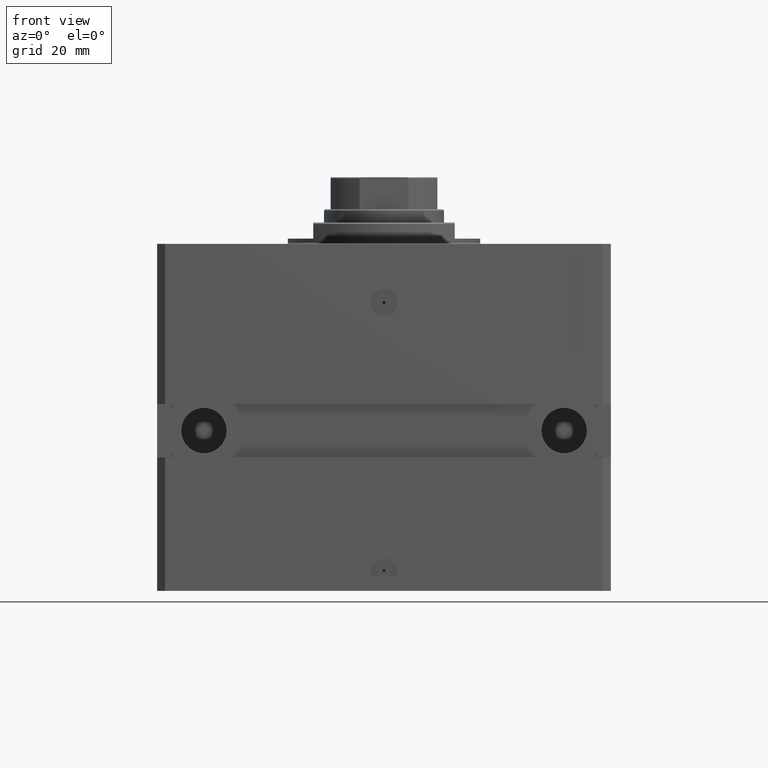
[diagram: clean part render]
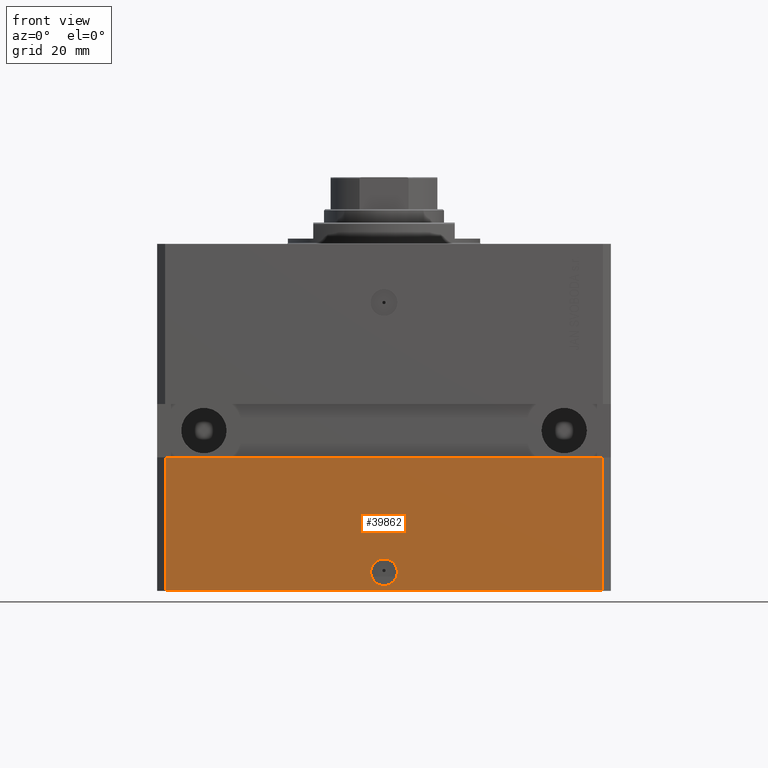
[diagram: same view with one face highlighted and labeled with its STEP entity id]
A machine part, front view. The second image highlights one B-rep face of the part: STEP entity #39862.
In plain terms, the highlighted planar face has unit normal (0, -1, 0).
Its self-contained STEP definition (entity closure, byte-faithful):
#708 = EDGE_LOOP ( 'NONE', ( #21276, #44220, #24317, #45873 ) ) ;
#2965 = LINE ( 'NONE', #18387, #34085 ) ;
#3627 = DIRECTION ( 'NONE',  ( 0.000000000000000000, -0.000000000000000000, -1.000000000000000000 ) ) ;
#4494 = VECTOR ( 'NONE', #31819, 1000.000000000000000 ) ;
#4586 = EDGE_CURVE ( 'NONE', #8943, #26206, #43077, .T. ) ;
#6577 = FACE_OUTER_BOUND ( 'NONE', #708, .T. ) ;
#7064 = PLANE ( 'NONE',  #40439 ) ;
#8041 = LINE ( 'NONE', #22493, #22066 ) ;
#8943 = VERTEX_POINT ( 'NONE', #15189 ) ;
#9366 = CIRCLE ( 'NONE', #39888, 5.000000000000006217 ) ;
#9384 = DIRECTION ( 'NONE',  ( 1.176083712526788232E-16, -1.000000000000000000, 0.000000000000000000 ) ) ;
#10395 = AXIS2_PLACEMENT_3D ( 'NONE', #47113, #9384, #31426 ) ;
#11127 = CARTESIAN_POINT ( 'NONE',  ( -82.00000000000001421, -70.00000000000000000, -130.0000000000000000 ) ) ;
#14367 = CARTESIAN_POINT ( 'NONE',  ( -5.000000000000006217, -70.00000000000000000, -123.0000000000000000 ) ) ;
#15189 = CARTESIAN_POINT ( 'NONE',  ( 82.00000000000001421, -70.00000000000000000, -130.0000000000000000 ) ) ;
#16713 = EDGE_CURVE ( 'NONE', #36197, #24969, #8041, .T. ) ;
#18387 = CARTESIAN_POINT ( 'NONE',  ( -82.00000000000001421, -70.00000000000000000, -130.0000000000000000 ) ) ;
#18988 = CARTESIAN_POINT ( 'NONE',  ( 5.000000000000006217, -70.00000000000000000, -123.0000000000000000 ) ) ;
#19631 = ORIENTED_EDGE ( 'NONE', *, *, #46722, .F. ) ;
#21276 = ORIENTED_EDGE ( 'NONE', *, *, #40746, .F. ) ;
#22066 = VECTOR ( 'NONE', #33756, 1000.000000000000000 ) ;
#22493 = CARTESIAN_POINT ( 'NONE',  ( -82.00000000000001421, -70.00000000000000000, -130.0000000000000000 ) ) ;
#24317 = ORIENTED_EDGE ( 'NONE', *, *, #33570, .T. ) ;
#24659 = CARTESIAN_POINT ( 'NONE',  ( 82.00000000000001421, -69.99999999999998579, -80.00000000000001421 ) ) ;
#24969 = VERTEX_POINT ( 'NONE', #45647 ) ;
#25022 = EDGE_CURVE ( 'NONE', #38874, #32997, #37776, .T. ) ;
#25479 = DIRECTION ( 'NONE',  ( 1.000000000000000000, 0.000000000000000000, 0.000000000000000000 ) ) ;
#26206 = VERTEX_POINT ( 'NONE', #24659 ) ;
#28630 = CARTESIAN_POINT ( 'NONE',  ( -85.00000000000001421, -70.00000000000001421, -80.00000000000001421 ) ) ;
#31426 = DIRECTION ( 'NONE',  ( 1.000000000000000000, 0.000000000000000000, 0.000000000000000000 ) ) ;
#31819 = DIRECTION ( 'NONE',  ( 1.000000000000000000, 1.632680918566406300E-16, 0.000000000000000000 ) ) ;
#32997 = VERTEX_POINT ( 'NONE', #18988 ) ;
#33570 = EDGE_CURVE ( 'NONE', #36197, #8943, #2965, .T. ) ;
#33745 = FACE_BOUND ( 'NONE', #42383, .T. ) ;
#33756 = DIRECTION ( 'NONE',  ( 0.000000000000000000, 0.000000000000000000, 1.000000000000000000 ) ) ;
#34085 = VECTOR ( 'NONE', #25479, 1000.000000000000000 ) ;
#34376 = ORIENTED_EDGE ( 'NONE', *, *, #25022, .F. ) ;
#36197 = VERTEX_POINT ( 'NONE', #11127 ) ;
#36867 = DIRECTION ( 'NONE',  ( 1.000000000000000000, 0.000000000000000000, 0.000000000000000000 ) ) ;
#37393 = VECTOR ( 'NONE', #38413, 1000.000000000000000 ) ;
#37776 = CIRCLE ( 'NONE', #10395, 5.000000000000006217 ) ;
#38178 = CARTESIAN_POINT ( 'NONE',  ( 82.00000000000001421, -70.00000000000000000, -130.0000000000000000 ) ) ;
#38413 = DIRECTION ( 'NONE',  ( 0.000000000000000000, 0.000000000000000000, 1.000000000000000000 ) ) ;
#38874 = VERTEX_POINT ( 'NONE', #14367 ) ;
#39862 = ADVANCED_FACE ( 'NONE', ( #33745, #6577 ), #7064, .T. ) ;
#39888 = AXIS2_PLACEMENT_3D ( 'NONE', #44938, #47893, #36867 ) ;
#40439 = AXIS2_PLACEMENT_3D ( 'NONE', #48460, #43809, #3627 ) ;
#40746 = EDGE_CURVE ( 'NONE', #24969, #26206, #43818, .T. ) ;
#42383 = EDGE_LOOP ( 'NONE', ( #19631, #34376 ) ) ;
#43077 = LINE ( 'NONE', #38178, #37393 ) ;
#43809 = DIRECTION ( 'NONE',  ( 0.000000000000000000, -1.000000000000000000, 0.000000000000000000 ) ) ;
#43818 = LINE ( 'NONE', #28630, #4494 ) ;
#44220 = ORIENTED_EDGE ( 'NONE', *, *, #16713, .F. ) ;
#44938 = CARTESIAN_POINT ( 'NONE',  ( 0.000000000000000000, -70.00000000000000000, -123.0000000000000000 ) ) ;
#45647 = CARTESIAN_POINT ( 'NONE',  ( -82.00000000000000000, -70.00000000000001421, -80.00000000000001421 ) ) ;
#45873 = ORIENTED_EDGE ( 'NONE', *, *, #4586, .T. ) ;
#46722 = EDGE_CURVE ( 'NONE', #32997, #38874, #9366, .T. ) ;
#47113 = CARTESIAN_POINT ( 'NONE',  ( 0.000000000000000000, -70.00000000000000000, -123.0000000000000000 ) ) ;
#47893 = DIRECTION ( 'NONE',  ( 1.176083712526788232E-16, -1.000000000000000000, 0.000000000000000000 ) ) ;
#48460 = CARTESIAN_POINT ( 'NONE',  ( -82.00000000000001421, -70.00000000000000000, -130.0000000000000000 ) ) ;